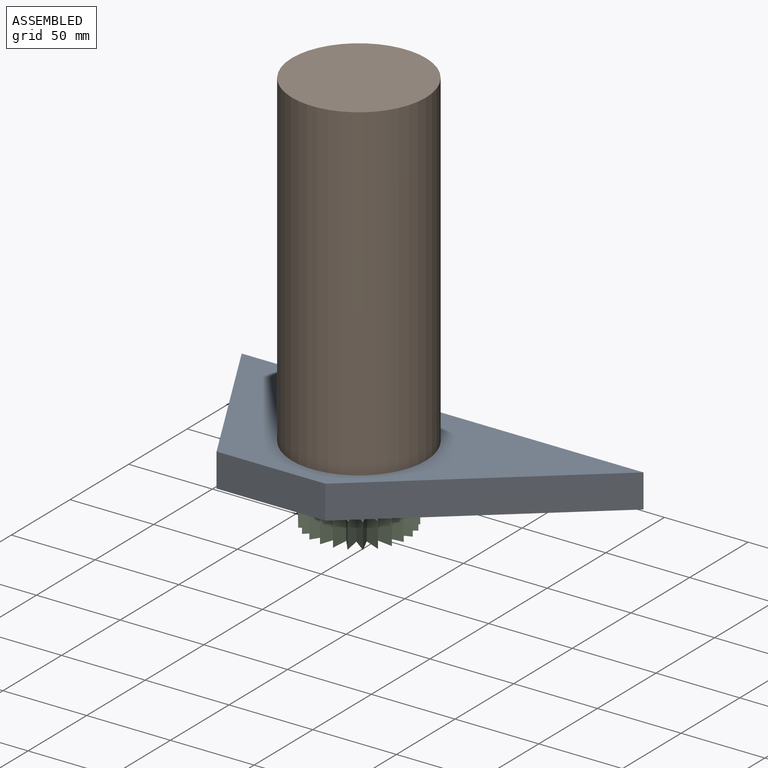
[diagram: assembled view]
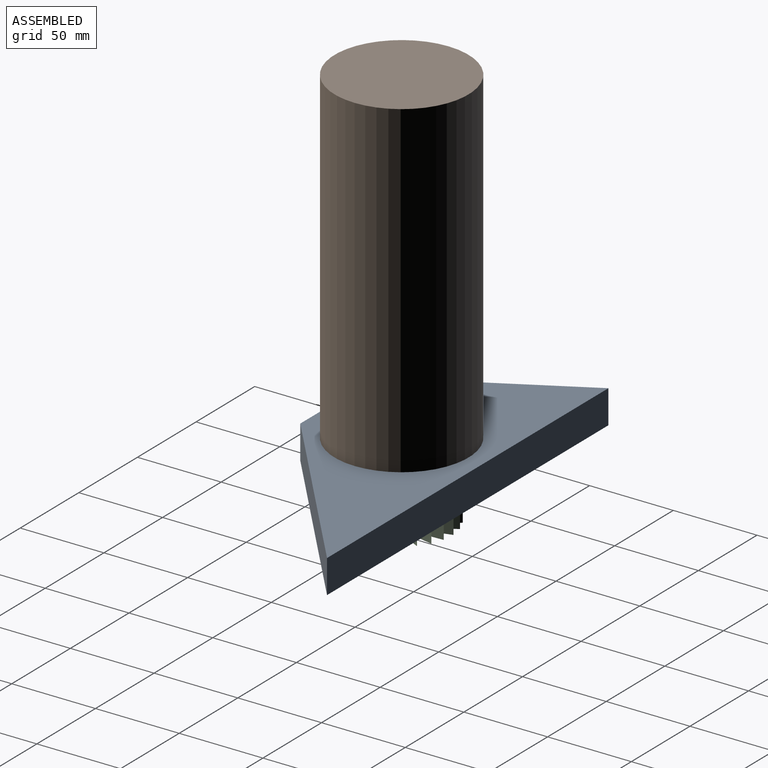
[diagram: assembled view, second angle]
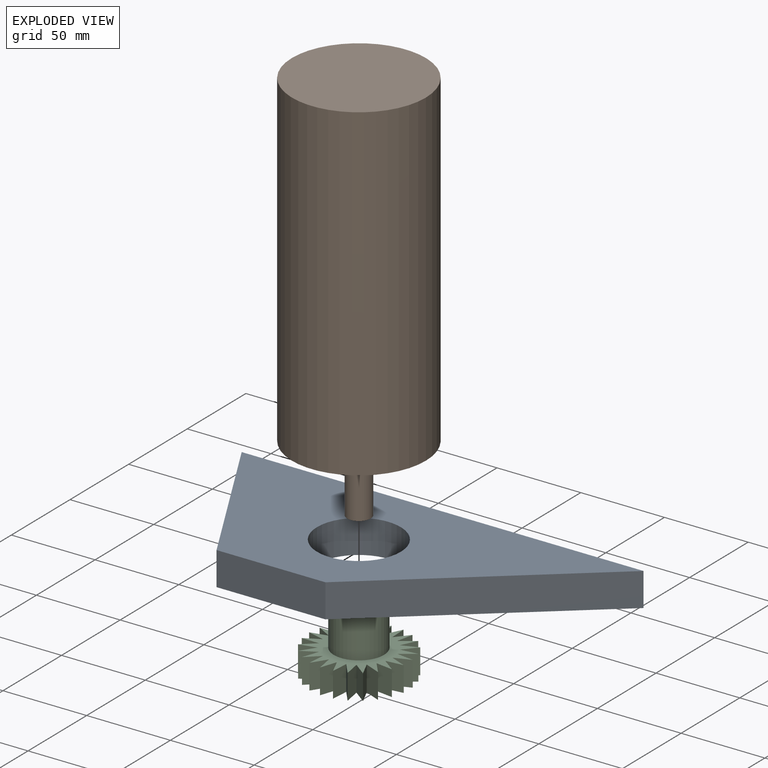
[diagram: exploded view]
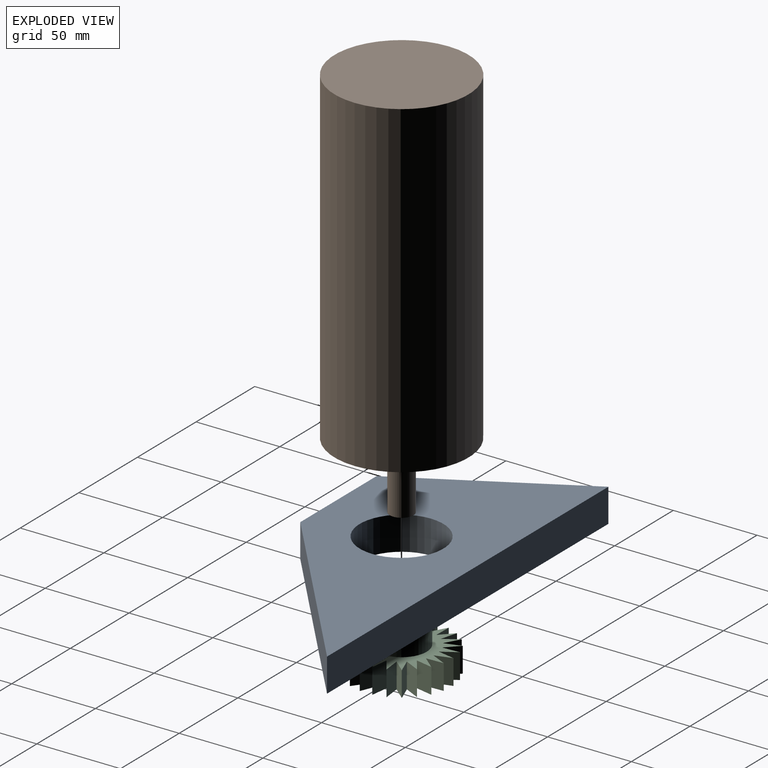
[diagram: exploded view, second angle]
ASSEMBLY  parts=3 mates=2
PART A: 7 faces, bbox 240x100x20 mm
  f0: plane 240x20mm, normal (0,1,0), area 4800mm2, adj f1,f4,f5,f6
  f1: plane 100x55mm, normal (-0.88,-0.48,0), area 2282.5mm2, adj f0,f2,f5,f6
  f2: plane 65x20mm, normal (0,-1,0), area 1300mm2, adj f1,f4,f5,f6
  f3: cylinder r=25mm len=50mm, axis (0,0,-1), area 3141.6mm2, adj f5,f6
  f4: plane 120x100mm, normal (0.64,-0.77,0), area 3124.1mm2, adj f0,f2,f5,f6
  f5: plane 240x100mm, normal (0,0,1), area 13286.5mm2, adj f0,f1,f2,f3,f4
  f6: plane 240x100mm, normal (0,0,-1), area 13286.5mm2, adj f0,f1,f2,f3,f4
PART B: 7 faces, bbox 236x80x80 mm
  f0: plane 14x14mm, normal (-1,0,0), area 153.9mm2, adj f6
  f1: plane 80x80mm, normal (1,0,0), area 5026.5mm2, adj f2
  f2: cylinder r=40mm len=196mm, axis (1,0,0), area 49260.2mm2, adj f1,f3
  f3: plane 80x80mm, normal (-1,0,0), area 3063.1mm2, adj f2,f4
  f4: cylinder r=25mm len=50mm, axis (1,0,0), area 785.4mm2, adj f3,f5
  f5: plane 50x50mm, normal (-1,0,0), area 1809.6mm2, adj f4,f6
  f6: cylinder r=7mm len=35mm, axis (1,0,0), area 1539.4mm2, adj f0,f5
PART C: 55 faces, bbox 59.8x59.9x40 mm
  f0: plane 15x9.41mm, normal (-0.91,0.41,0), area 154.7mm2, adj f1,f49,f51,f52
  f1: plane 15x9.78mm, normal (0.95,0.32,0), area 154.7mm2, adj f0,f2,f51,f52
  f2: plane 15x10.16mm, normal (-0.99,0.17,0), area 154.7mm2, adj f1,f3,f51,f52
  f3: plane 15x8.65mm, normal (0.84,0.54,0), area 154.7mm2, adj f2,f4,f51,f52
  f4: plane 15x10.28mm, normal (-1,-0.08,0), area 154.7mm2, adj f3,f5,f51,f52
  f5: plane 15x7.59mm, normal (0.68,0.74,0), area 154.7mm2, adj f4,f6,f51,f52
  f6: plane 15x9.75mm, normal (-0.95,-0.33,0), area 154.7mm2, adj f5,f7,f51,f52
  f7: plane 15x9.09mm, normal (0.47,0.88,0), area 154.7mm2, adj f6,f8,f51,f52
  f8: plane 15x8.61mm, normal (-0.83,-0.55,0), area 154.7mm2, adj f7,f9,f51,f52
  f9: plane 15x10.02mm, normal (0.24,0.97,0), area 154.7mm2, adj f8,f10,f51,f52
  f10: plane 15x7.64mm, normal (-0.67,-0.74,0), area 154.7mm2, adj f9,f11,f51,f52
  f11: plane 15x10.31mm, normal (-0.01,1,0), area 154.7mm2, adj f10,f12,f51,f52
  f12: plane 15x9.13mm, normal (-0.47,-0.88,0), area 154.7mm2, adj f11,f13,f51,f52
  f13: plane 15x9.96mm, normal (-0.26,0.97,0), area 154.7mm2, adj f12,f14,f51,f52
  f14: plane 15x10.03mm, normal (-0.23,-0.97,0), area 154.7mm2, adj f13,f15,f51,f52
  f15: plane 15x8.99mm, normal (-0.49,0.87,0), area 154.7mm2, adj f14,f16,f51,f52
  f16: plane 15x10.31mm, normal (0.02,-1,0), area 154.7mm2, adj f15,f17,f51,f52
  f17: plane 15x7.45mm, normal (-0.69,0.72,0), area 154.7mm2, adj f16,f18,f51,f52
  f18: plane 15x9.94mm, normal (0.27,-0.96,0), area 154.7mm2, adj f17,f19,f51,f52
  f19: plane 15x8.76mm, normal (-0.85,0.53,0), area 154.7mm2, adj f18,f20,f51,f52
  f20: plane 15x8.95mm, normal (0.5,-0.87,0), area 154.7mm2, adj f19,f21,f51,f52
  f21: plane 15x9.84mm, normal (-0.95,0.3,0), area 154.7mm2, adj f20,f22,f51,f52
  f22: plane 15x7.39mm, normal (0.7,-0.72,0), area 154.7mm2, adj f21,f23,f51,f52
  f23: plane 15x10.3mm, normal (-1,0.05,0), area 154.7mm2, adj f22,f24,f51,f52
  f24: plane 15x8.81mm, normal (0.85,-0.52,0), area 154.7mm2, adj f23,f25,f51,f52
  f25: plane 15x10.11mm, normal (-0.98,-0.2,0), area 154.7mm2, adj f24,f26,f51,f52
  f26: plane 15x9.86mm, normal (0.96,-0.29,0), area 154.7mm2, adj f25,f27,f51,f52
  f27: plane 15x9.29mm, normal (-0.9,-0.43,0), area 154.7mm2, adj f26,f28,f51,f52
  f28: plane 15x10.3mm, normal (1,-0.05,0), area 154.7mm2, adj f27,f29,f51,f52
  f29: plane 15x7.88mm, normal (-0.76,-0.65,0), area 154.7mm2, adj f28,f30,f51,f52
  f30: plane 15x10.1mm, normal (0.98,0.2,0), area 154.7mm2, adj f29,f31,f51,f52
  f31: plane 15x8.41mm, normal (-0.58,-0.81,0), area 154.7mm2, adj f30,f32,f51,f52
  f32: plane 15x9.25mm, normal (0.9,0.44,0), area 154.7mm2, adj f31,f33,f51,f52
  f33: plane 15x9.63mm, normal (-0.36,-0.93,0), area 154.7mm2, adj f32,f34,f51,f52
  f34: plane 15x7.83mm, normal (0.76,0.65,0), area 154.7mm2, adj f33,f35,f51,f52
  f35: plane 15x10.25mm, normal (-0.12,-0.99,0), area 154.7mm2, adj f34,f36,f51,f52
  f36: plane 15x8.45mm, normal (0.57,0.82,0), area 154.7mm2, adj f35,f37,f51,f52
  f37: plane 15x10.22mm, normal (0.14,-0.99,0), area 154.7mm2, adj f36,f38,f51,f52
  f38: plane 15x9.66mm, normal (0.35,0.94,0), area 154.7mm2, adj f37,f39,f51,f52
  f39: plane 15x9.55mm, normal (0.38,-0.93,0), area 154.7mm2, adj f38,f40,f51,f52
  f40: plane 15x10.25mm, normal (0.11,0.99,0), area 154.7mm2, adj f39,f41,f51,f52
  f41: plane 15x8.28mm, normal (0.6,-0.8,0), area 154.7mm2, adj f40,f42,f51,f52
  f42: plane 15x10.21mm, normal (-0.14,0.99,0), area 154.7mm2, adj f41,f43,f51,f52
  f43: plane 15x8.01mm, normal (0.78,-0.63,0), area 154.7mm2, adj f42,f44,f51,f52
  f44: plane 15x9.52mm, normal (-0.38,0.92,0), area 154.7mm2, adj f43,f45,f51,f52
  f45: plane 15x9.38mm, normal (0.91,-0.42,0), area 154.7mm2, adj f44,f46,f51,f52
  f46: plane 15x8.24mm, normal (-0.6,0.8,0), area 154.7mm2, adj f45,f47,f51,f52
  f47: plane 15x10.15mm, normal (0.98,-0.18,0), area 154.7mm2, adj f46,f48,f51,f52
  f48: plane 15x8.06mm, normal (-0.78,0.62,0), area 154.7mm2, adj f47,f49,f51,f52
  f49: plane 15x10.29mm, normal (1,0.07,0), area 154.7mm2, adj f0,f48,f51,f52
  f50: cylinder r=7mm len=40mm, axis (0,0,-1), area 1759.3mm2, adj f51,f54
  f51: plane 59.88x59.81mm, normal (0,0,1), area 1741mm2, adj f0,f1,f2,f3,f4,f5,f6,f7
  f52: plane 59.88x59.81mm, normal (0,0,-1), area 1188.1mm2, adj f0,f1,f2,f3,f4,f5,f6,f7
  f53: cylinder r=15mm len=30mm, axis (0,0,1), area 2356.2mm2, adj f52,f54
  f54: plane 30x30mm, normal (0,0,-1), area 552.9mm2, adj f50,f53
PLACE A t=(3.99,5.11,-14.45)mm
PLACE B rot(axis=(0,-1,0),90deg) t=(-11.01,5.11,-34.45)mm
PLACE C rot(axis=(1,0,0),180deg) t=(-11.01,5.11,-24.45)mm
MATE fastened C.f50 <-> B.f2  axis (0,0,1) through (-11.01,5.11,0.55)mm
MATE fastened B.f2 <-> A.f3  axis (0,0,-1) through (-11.01,5.11,5.55)mm
